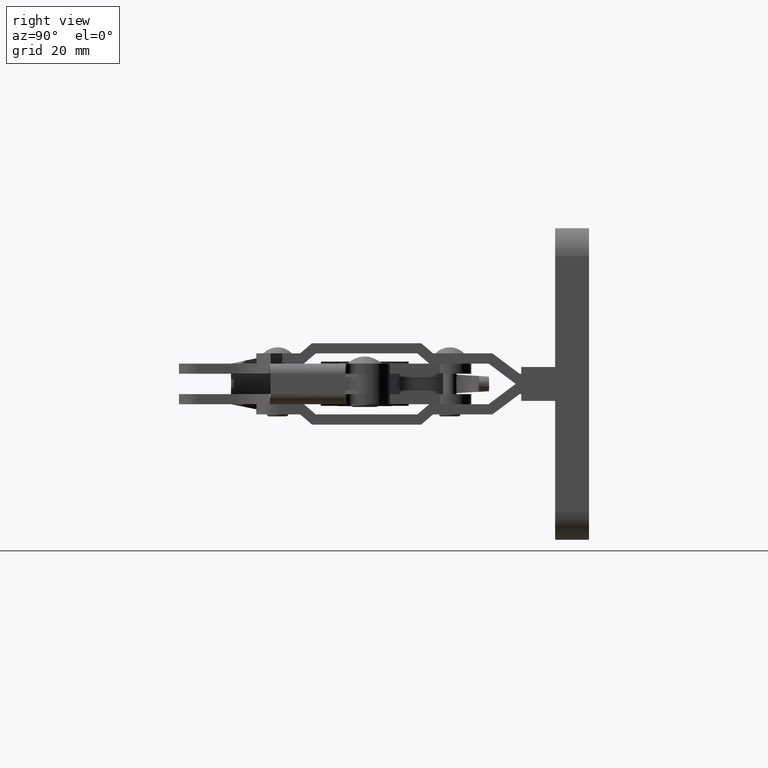
[diagram: clean part render]
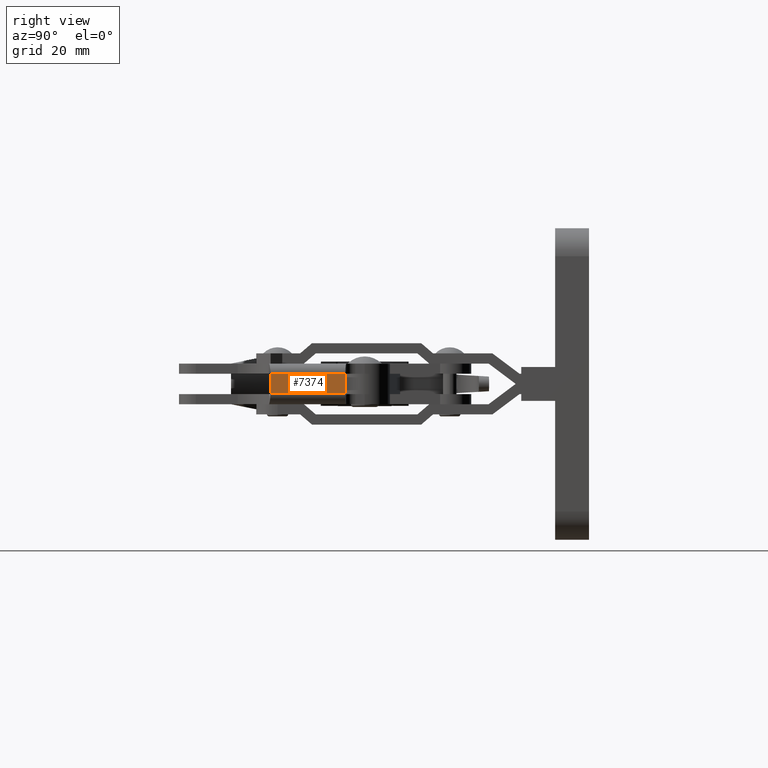
[diagram: same view with one face highlighted and labeled with its STEP entity id]
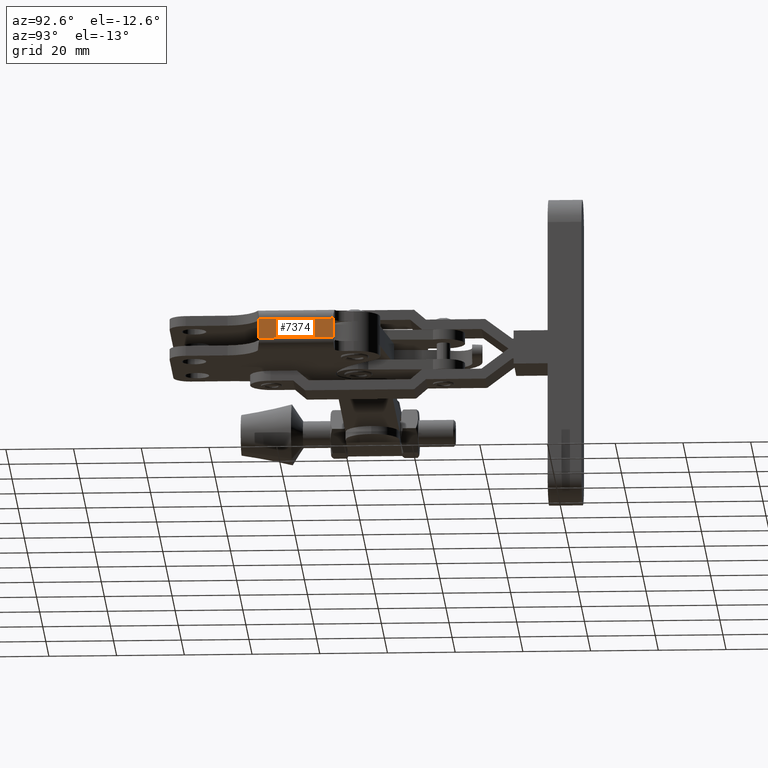
[diagram: same view with one face highlighted and labeled with its STEP entity id]
A machine part, right view. The second image highlights one B-rep face of the part: STEP entity #7374.
A second angle (auxiliary view) of the same face is appended — the face is thin or edge-on in the first view.
In plain terms, the highlighted planar face has unit normal (1, -0, -0).
Its self-contained STEP definition (entity closure, byte-faithful):
#386 = CARTESIAN_POINT ( 'NONE',  ( 0.08103989673574417400, 34.04999999999971300, -2.902079783401253700 ) ) ;
#598 = DIRECTION ( 'NONE',  ( 3.489224907719378100E-015, 1.425185458295711200E-016, 1.000000000000000000 ) ) ;
#615 = VERTEX_POINT ( 'NONE', #8578 ) ;
#759 = LINE ( 'NONE', #1533, #8552 ) ;
#827 = ORIENTED_EDGE ( 'NONE', *, *, #10526, .T. ) ;
#1374 = VERTEX_POINT ( 'NONE', #5439 ) ;
#1456 = PLANE ( 'NONE',  #10283 ) ;
#1533 = CARTESIAN_POINT ( 'NONE',  ( 0.08103989170054665100, 34.49999999999968700, -2.902079783401253700 ) ) ;
#1686 = DIRECTION ( 'NONE',  ( 1.887379141862765700E-015, 1.000000000000000000, -1.425185458295776300E-016 ) ) ;
#2217 = LINE ( 'NONE', #10528, #4180 ) ;
#2414 = DIRECTION ( 'NONE',  ( -3.489224907719378100E-015, -1.425185458295711200E-016, -1.000000000000000000 ) ) ;
#2519 = CARTESIAN_POINT ( 'NONE',  ( 0.08103989170052484900, 12.04999999999975600, 2.998960108299412800 ) ) ;
#2906 = FACE_OUTER_BOUND ( 'NONE', #4842, .T. ) ;
#3124 = DIRECTION ( 'NONE',  ( -3.489224907719378100E-015, -1.425185458295711200E-016, -1.000000000000000000 ) ) ;
#3414 = CARTESIAN_POINT ( 'NONE',  ( 0.08103989170052451600, 12.04999999999975600, 2.900000000000003000 ) ) ;
#4054 = DIRECTION ( 'NONE',  ( 1.887379141862766100E-015, 1.000000000000000000, -4.529178422331458000E-018 ) ) ;
#4180 = VECTOR ( 'NONE', #598, 1000.000000000000000 ) ;
#4514 = EDGE_CURVE ( 'NONE', #5769, #1374, #5208, .T. ) ;
#4566 = ORIENTED_EDGE ( 'NONE', *, *, #8112, .F. ) ;
#4842 = EDGE_LOOP ( 'NONE', ( #4914, #7754, #827, #4566 ) ) ;
#4914 = ORIENTED_EDGE ( 'NONE', *, *, #4514, .T. ) ;
#4926 = VECTOR ( 'NONE', #2414, 1000.000000000000000 ) ;
#5191 = EDGE_CURVE ( 'NONE', #1374, #9267, #759, .T. ) ;
#5208 = LINE ( 'NONE', #2519, #4926 ) ;
#5439 = CARTESIAN_POINT ( 'NONE',  ( 0.08103989170050426800, 12.04999999999975600, -2.902079783401251100 ) ) ;
#5769 = VERTEX_POINT ( 'NONE', #3414 ) ;
#6083 = VECTOR ( 'NONE', #4054, 1000.000000000000000 ) ;
#7274 = CARTESIAN_POINT ( 'NONE',  ( 0.08103989170039752100, 34.49999999999968000, -45.64103989170063600 ) ) ;
#7374 = ADVANCED_FACE ( 'NONE', ( #2906 ), #1456, .T. ) ;
#7405 = CARTESIAN_POINT ( 'NONE',  ( 0.08103989170056688500, 34.49999999999968700, 2.900000000000001200 ) ) ;
#7754 = ORIENTED_EDGE ( 'NONE', *, *, #5191, .T. ) ;
#8107 = DIRECTION ( 'NONE',  ( 1.000000000000000000, -1.887379141862765700E-015, -3.489224907719377700E-015 ) ) ;
#8112 = EDGE_CURVE ( 'NONE', #5769, #615, #10734, .T. ) ;
#8552 = VECTOR ( 'NONE', #1686, 1000.000000000000000 ) ;
#8578 = CARTESIAN_POINT ( 'NONE',  ( 0.08103989170056603900, 34.04999999999971300, 2.899999999999999500 ) ) ;
#9267 = VERTEX_POINT ( 'NONE', #386 ) ;
#10283 = AXIS2_PLACEMENT_3D ( 'NONE', #7274, #8107, #3124 ) ;
#10526 = EDGE_CURVE ( 'NONE', #9267, #615, #2217, .T. ) ;
#10528 = CARTESIAN_POINT ( 'NONE',  ( 0.08103989170054475000, 34.04999999999971300, -3.201039891700667300 ) ) ;
#10734 = LINE ( 'NONE', #7405, #6083 ) ;